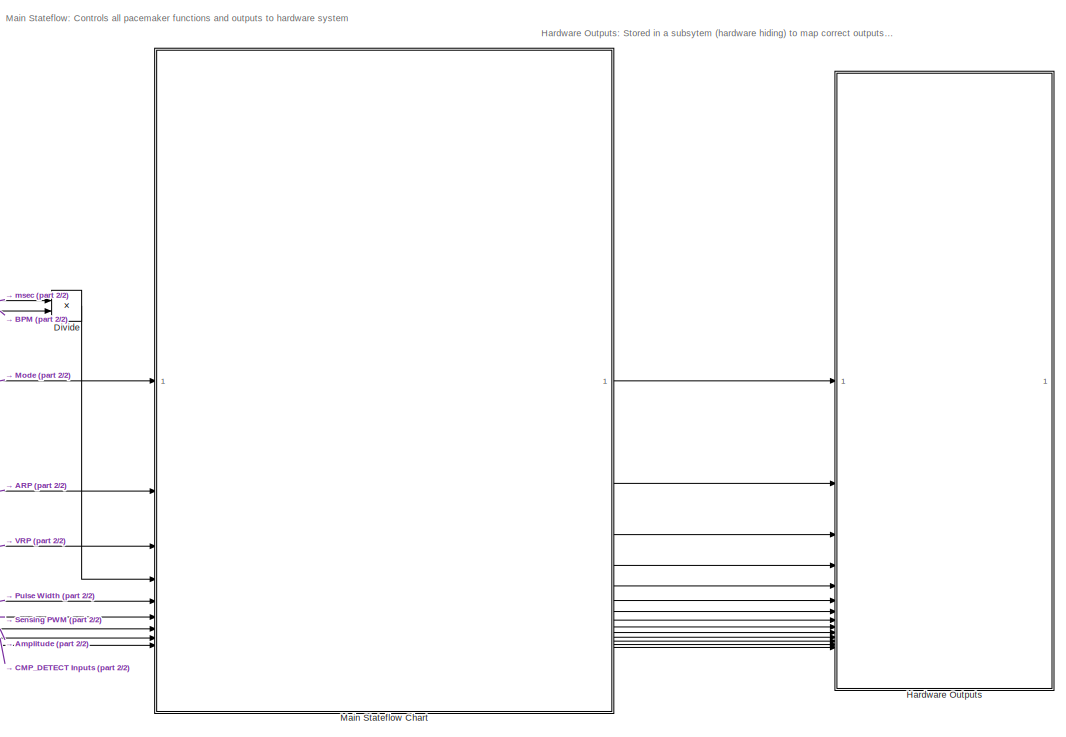
[diagram: root canvas - part 1/2, right side, full height]
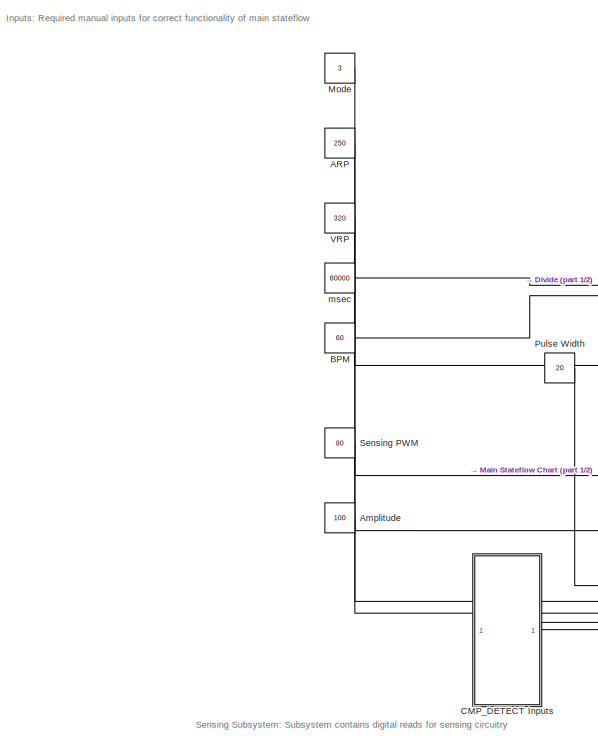
[diagram: root canvas - part 2/2, left side, full height]
MODEL slx_8c29b159b8b4
KIND model
CONFIG AbsTol = auto
CONFIG EnableMultiTasking = on
CONFIG FixedStep = 1e-3
CONFIG MaxStep = auto
CONFIG MinStep = auto
CONFIG RelTol = 1e-3
CONFIG SampleTimeConstraint = Unconstrained
CONFIG SolverName = FixedStepAuto
CONFIG StartTime = 0.0
CONFIG StopTime = 10.0
BLOCK [Constant] ARP
  Value = 250
BLOCK [Constant] Amplitude
  Value = 100
BLOCK [Constant] BPM
  Value = 60
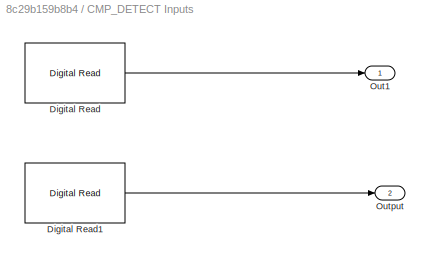
BLOCK [SubSystem] CMP_DETECT Inputs
BLOCK [Reference] CMP_DETECT Inputs/Digital Read  REF=frdmk64flib/Digital Read
  SourceBlock = frdmk64flib/Digital Read
  SourceType = freedomk64f.DigitalRead
BLOCK [Reference] CMP_DETECT Inputs/Digital Read1  REF=frdmk64flib/Digital Read
  SourceBlock = frdmk64flib/Digital Read
  SourceType = freedomk64f.DigitalRead
BLOCK [Outport] CMP_DETECT Inputs/Out1
BLOCK [Outport] CMP_DETECT Inputs/Output
  Port = 2
BLOCK [Product] Divide
  Inputs = */
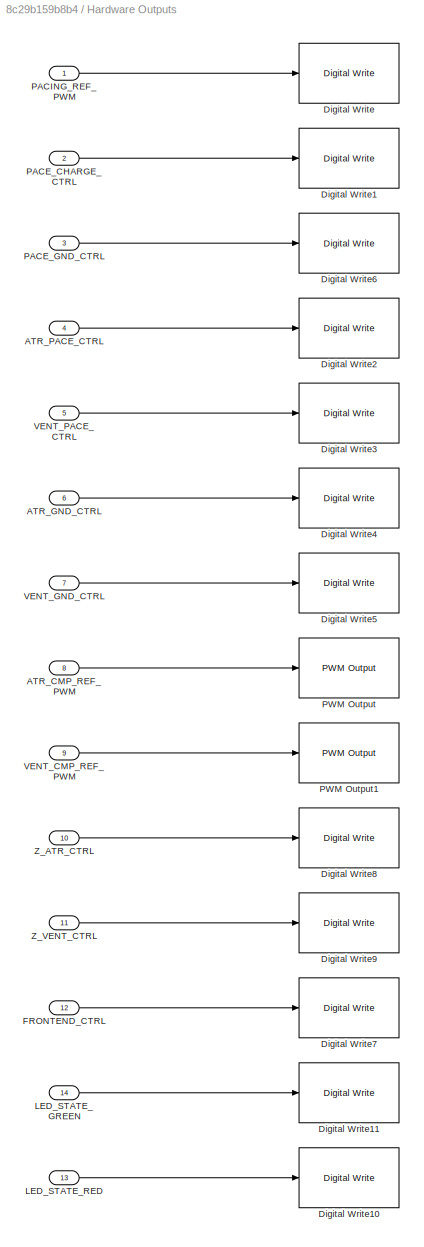
BLOCK [SubSystem] Hardware Outputs
BLOCK [Inport] Hardware Outputs/ATR_CMP_REF_PWM
  Port = 8
BLOCK [Inport] Hardware Outputs/ATR_GND_CTRL
  Port = 6
BLOCK [Inport] Hardware Outputs/ATR_PACE_CTRL
  Port = 4
BLOCK [Reference] Hardware Outputs/Digital Write  REF=frdmk64flib/Digital Write
  SourceBlock = frdmk64flib/Digital Write
  SourceType = freedomk64f.DigitalWrite
BLOCK [Reference] Hardware Outputs/Digital Write1  REF=frdmk64flib/Digital Write
  SourceBlock = frdmk64flib/Digital Write
  SourceType = freedomk64f.DigitalWrite
BLOCK [Reference] Hardware Outputs/Digital Write10  REF=frdmk64flib/Digital Write
  SourceBlock = frdmk64flib/Digital Write
  SourceType = freedomk64f.DigitalWrite
BLOCK [Reference] Hardware Outputs/Digital Write11  REF=frdmk64flib/Digital Write
  SourceBlock = frdmk64flib/Digital Write
  SourceType = freedomk64f.DigitalWrite
BLOCK [Reference] Hardware Outputs/Digital Write2  REF=frdmk64flib/Digital Write
  SourceBlock = frdmk64flib/Digital Write
  SourceType = freedomk64f.DigitalWrite
BLOCK [Reference] Hardware Outputs/Digital Write3  REF=frdmk64flib/Digital Write
  SourceBlock = frdmk64flib/Digital Write
  SourceType = freedomk64f.DigitalWrite
BLOCK [Reference] Hardware Outputs/Digital Write4  REF=frdmk64flib/Digital Write
  SourceBlock = frdmk64flib/Digital Write
  SourceType = freedomk64f.DigitalWrite
BLOCK [Reference] Hardware Outputs/Digital Write5  REF=frdmk64flib/Digital Write
  SourceBlock = frdmk64flib/Digital Write
  SourceType = freedomk64f.DigitalWrite
BLOCK [Reference] Hardware Outputs/Digital Write6  REF=frdmk64flib/Digital Write
  SourceBlock = frdmk64flib/Digital Write
  SourceType = freedomk64f.DigitalWrite
BLOCK [Reference] Hardware Outputs/Digital Write7  REF=frdmk64flib/Digital Write
  SourceBlock = frdmk64flib/Digital Write
  SourceType = freedomk64f.DigitalWrite
BLOCK [Reference] Hardware Outputs/Digital Write8  REF=frdmk64flib/Digital Write
  SourceBlock = frdmk64flib/Digital Write
  SourceType = freedomk64f.DigitalWrite
BLOCK [Reference] Hardware Outputs/Digital Write9  REF=frdmk64flib/Digital Write
  SourceBlock = frdmk64flib/Digital Write
  SourceType = freedomk64f.DigitalWrite
BLOCK [Inport] Hardware Outputs/FRONTEND_CTRL
  Port = 12
BLOCK [Inport] Hardware Outputs/LED_STATE_GREEN
  Port = 14
BLOCK [Inport] Hardware Outputs/LED_STATE_RED
  Port = 13
BLOCK [Inport] Hardware Outputs/PACE_CHARGE_CTRL
  Port = 2
BLOCK [Inport] Hardware Outputs/PACE_GND_CTRL
  Port = 3
BLOCK [Inport] Hardware Outputs/PACING_REF_PWM
BLOCK [Reference] Hardware Outputs/PWM Output  REF=frdmk64flib/PWM Output
  SourceBlock = frdmk64flib/PWM Output
  SourceType = freedomk64f.PWMOutput
BLOCK [Reference] Hardware Outputs/PWM Output1  REF=frdmk64flib/PWM Output
  SourceBlock = frdmk64flib/PWM Output
  SourceType = freedomk64f.PWMOutput
BLOCK [Inport] Hardware Outputs/VENT_CMP_REF_PWM
  Port = 9
BLOCK [Inport] Hardware Outputs/VENT_GND_CTRL
  Port = 7
BLOCK [Inport] Hardware Outputs/VENT_PACE_CTRL
  Port = 5
BLOCK [Inport] Hardware Outputs/Z_ATR_CTRL
  Port = 10
BLOCK [Inport] Hardware Outputs/Z_VENT_CTRL
  Port = 11
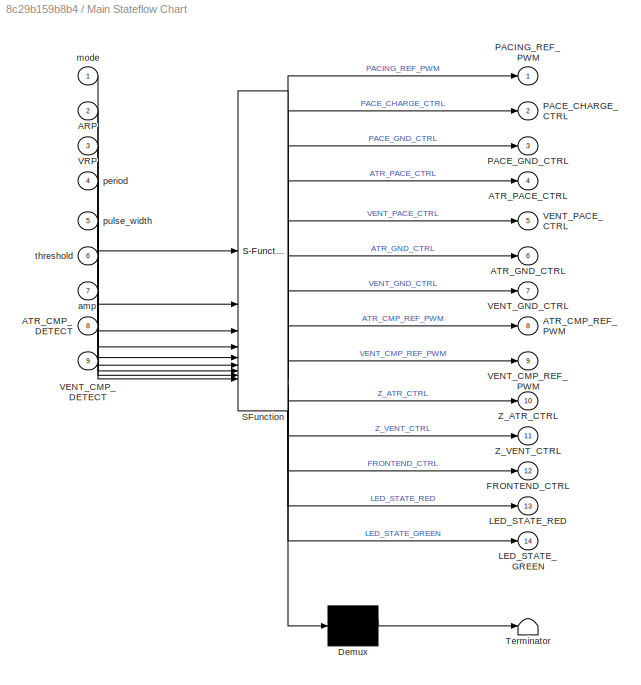
BLOCK [SubSystem] Main Stateflow Chart
  ErrorFcn = Stateflow.Translate.translate
  PermitHierarchicalResolution = ExplicitOnly
  SFBlockType = Chart
  TreatAsAtomicUnit = on
BLOCK [Demux] Main Stateflow Chart/ Demux 
  Outputs = 1
BLOCK [S-Function] Main Stateflow Chart/ SFunction 
  EnableBusSupport = on
  FunctionName = sf_sfun
  PortCounts = [9 15]
  SFcnIsStateOwnerBlock = off
  SFunctionDeploymentMode = off
  Tag = Stateflow S-Function 3
BLOCK [Terminator] Main Stateflow Chart/ Terminator 
BLOCK [Inport] Main Stateflow Chart/ARP
  Port = 2
BLOCK [Inport] Main Stateflow Chart/ATR_CMP_DETECT
  Port = 8
BLOCK [Outport] Main Stateflow Chart/ATR_CMP_REF_PWM
  Port = 8
BLOCK [Outport] Main Stateflow Chart/ATR_GND_CTRL
  Port = 6
BLOCK [Outport] Main Stateflow Chart/ATR_PACE_CTRL
  Port = 4
BLOCK [Outport] Main Stateflow Chart/FRONTEND_CTRL
  Port = 12
BLOCK [Outport] Main Stateflow Chart/LED_STATE_GREEN
  Port = 14
BLOCK [Outport] Main Stateflow Chart/LED_STATE_RED
  Port = 13
BLOCK [Outport] Main Stateflow Chart/PACE_CHARGE_CTRL
  Port = 2
BLOCK [Outport] Main Stateflow Chart/PACE_GND_CTRL
  Port = 3
BLOCK [Outport] Main Stateflow Chart/PACING_REF_PWM
BLOCK [Inport] Main Stateflow Chart/VENT_CMP_DETECT
  Port = 9
BLOCK [Outport] Main Stateflow Chart/VENT_CMP_REF_PWM
  Port = 9
BLOCK [Outport] Main Stateflow Chart/VENT_GND_CTRL
  Port = 7
BLOCK [Outport] Main Stateflow Chart/VENT_PACE_CTRL
  Port = 5
BLOCK [Inport] Main Stateflow Chart/VRP
  Port = 3
BLOCK [Outport] Main Stateflow Chart/Z_ATR_CTRL
  Port = 10
BLOCK [Outport] Main Stateflow Chart/Z_VENT_CTRL
  Port = 11
BLOCK [Inport] Main Stateflow Chart/amp
  Port = 7
BLOCK [Inport] Main Stateflow Chart/mode
BLOCK [Inport] Main Stateflow Chart/period
  Port = 4
BLOCK [Inport] Main Stateflow Chart/pulse_width
  Port = 5
BLOCK [Inport] Main Stateflow Chart/threshold
  Port = 6
BLOCK [Constant] Mode
  Value = 3
BLOCK [Constant] Pulse Width
  Value = 20
BLOCK [Constant] Sensing PWM 
  Value = 80
BLOCK [Constant] VRP
  Value = 320
BLOCK [Constant] msec
  Value = 60000
ANNOTATION (root): Inputs: Required manual inputs for correct functionality of main stateflow
ANNOTATION (root): Sensing Subsystem: Subsystem contains digital reads for sensing circuitry
ANNOTATION (root): Hardware Outputs: Stored in a subsytem (hardware hiding) to map correct outputs to associated hardware pins.
ANNOTATION (root): Main Stateflow: Controls all pacemaker functions and outputs to hardware system
LINE ARP:1 -> Main Stateflow Chart:2
LINE Amplitude:1 -> Main Stateflow Chart:7
LINE BPM:1 -> Divide:2
LINE CMP_DETECT Inputs/Digital Read1:1 -> CMP_DETECT Inputs/Output:1
LINE CMP_DETECT Inputs/Digital Read:1 -> CMP_DETECT Inputs/Out1:1
LINE CMP_DETECT Inputs:1 -> Main Stateflow Chart:8
LINE CMP_DETECT Inputs:2 -> Main Stateflow Chart:9
LINE Divide:1 -> Main Stateflow Chart:4
LINE Hardware Outputs/ATR_CMP_REF_PWM:1 -> Hardware Outputs/PWM Output:1
LINE Hardware Outputs/ATR_GND_CTRL:1 -> Hardware Outputs/Digital Write4:1
LINE Hardware Outputs/ATR_PACE_CTRL:1 -> Hardware Outputs/Digital Write2:1
LINE Hardware Outputs/FRONTEND_CTRL:1 -> Hardware Outputs/Digital Write7:1
LINE Hardware Outputs/LED_STATE_GREEN:1 -> Hardware Outputs/Digital Write11:1
LINE Hardware Outputs/LED_STATE_RED:1 -> Hardware Outputs/Digital Write10:1
LINE Hardware Outputs/PACE_CHARGE_CTRL:1 -> Hardware Outputs/Digital Write1:1
LINE Hardware Outputs/PACE_GND_CTRL:1 -> Hardware Outputs/Digital Write6:1
LINE Hardware Outputs/PACING_REF_PWM:1 -> Hardware Outputs/Digital Write:1
LINE Hardware Outputs/VENT_CMP_REF_PWM:1 -> Hardware Outputs/PWM Output1:1
LINE Hardware Outputs/VENT_GND_CTRL:1 -> Hardware Outputs/Digital Write5:1
LINE Hardware Outputs/VENT_PACE_CTRL:1 -> Hardware Outputs/Digital Write3:1
LINE Hardware Outputs/Z_ATR_CTRL:1 -> Hardware Outputs/Digital Write8:1
LINE Hardware Outputs/Z_VENT_CTRL:1 -> Hardware Outputs/Digital Write9:1
LINE Main Stateflow Chart:1 -> Hardware Outputs:1
LINE Main Stateflow Chart:10 -> Hardware Outputs:10
LINE Main Stateflow Chart:11 -> Hardware Outputs:11
LINE Main Stateflow Chart:12 -> Hardware Outputs:12
LINE Main Stateflow Chart:13 -> Hardware Outputs:13
LINE Main Stateflow Chart:14 -> Hardware Outputs:14
LINE Main Stateflow Chart:2 -> Hardware Outputs:2
LINE Main Stateflow Chart:3 -> Hardware Outputs:3
LINE Main Stateflow Chart:4 -> Hardware Outputs:4
LINE Main Stateflow Chart:5 -> Hardware Outputs:5
LINE Main Stateflow Chart:6 -> Hardware Outputs:6
LINE Main Stateflow Chart:7 -> Hardware Outputs:7
LINE Main Stateflow Chart:8 -> Hardware Outputs:8
LINE Main Stateflow Chart:9 -> Hardware Outputs:9
LINE Mode:1 -> Main Stateflow Chart:1
LINE Pulse Width:1 -> Main Stateflow Chart:5
LINE Sensing PWM :1 -> Main Stateflow Chart:6
LINE VRP:1 -> Main Stateflow Chart:3
LINE msec:1 -> Divide:1
CHART Main Stateflow Chart states=29 transitions=26
  STATE_LABEL 'AOO'
  STATE_LABEL '<!DOCTYPE HTML PUBLIC "-//W3C//DTD HTML 4.0//EN" "http://www.w3.org/TR/REC-html40/strict.dtd">\n<html><head><meta name="qrichtext" content="1" /><style type="text/css">\np, li { white-space: pre-wrap; }\n</style></head><body align="left" style=" font-family:\'Helvetica\'; font-size:12px; font-weight:400; font-style:normal;">\n<p align="left" style=" margin-top:0px; margin-bottom:0px; margin-left:0px; ma...<+503ch>'  <repeated x4 — deduplicated; at blocks: Main Stateflow Chart>
  STATE_LABEL '<!DOCTYPE HTML PUBLIC "-//W3C//DTD HTML 4.0//EN" "http://www.w3.org/TR/REC-html40/strict.dtd">\n<html><head><meta name="qrichtext" content="1" /><style type="text/css">\np, li { white-space: pre-wrap; }\n</style></head><body align="left" style=" font-family:\'MS Shell Dlg 2\'; font-size:11px; font-weight:600; font-style:normal;">\n<p align="left" style=" margin-top:0px; margin-bottom:0px; margin-left:0p...<+428ch>'  <repeated x6 — deduplicated; at blocks: Main Stateflow Chart>
  STATE_LABEL 'Pacing\n\nentry:\nPACE_CHARGE_CTRL=0;\nATR_PACE_CTRL= 1;\nATR_GND_CTRL= 0;\nPACE_GND_CTRL=1;\nLED_STATE_RED=false;\nLED_STATE_GREEN=true;\n'
  STATE_LABEL 'Charging\n\nentry:\nPACE_CHARGE_CTRL=1;\nATR_PACE_CTRL= 0;\nATR_GND_CTRL= 1;\nPACE_GND_CTRL=0;\nLED_STATE_RED=true;\nLED_STATE_GREEN=false;'
  STATE_LABEL '[after(period-pulse_width,msec)]'
  STATE_LABEL '[after(pulse_width,msec)]'
  STATE_LABEL 'Pacing\n\nentry:\nPACE_CHARGE_CTRL=0;\nATR_PACE_CTRL= 1;\nATR_GND_CTRL= 0;\nPACE_GND_CTRL=1;\nLED_STATE_RED=false;\nLED_STATE_GREEN=true;\n'
  STATE_LABEL 'Charging\n\nentry:\nPACE_CHARGE_CTRL=1;\nATR_PACE_CTRL= 0;\nATR_GND_CTRL= 1;\nPACE_GND_CTRL=0;\nLED_STATE_RED=true;\nLED_STATE_GREEN=false;'
  STATE_LABEL '<!DOCTYPE HTML PUBLIC "-//W3C//DTD HTML 4.0//EN" "http://www.w3.org/TR/REC-html40/strict.dtd">\n<html><head><meta name="qrichtext" content="1" /><style type="text/css">\np, li { white-space: pre-wrap; }\n</style></head><body align="left" style=" font-family:\'Helvetica\'; font-size:12px; font-weight:400; font-style:normal;">\n<p align="left" style=" margin-top:0px; margin-bottom:0px; margin-left:0px; ma...<+219ch>'
  STATE_LABEL 'VOO'
  STATE_LABEL 'Pacing\n\nentry:\nPACE_CHARGE_CTRL=0;\nVENT_PACE_CTRL= 1;\nVENT_GND_CTRL= 0;\nPACE_GND_CTRL=1;\nLED_STATE_RED=false;\nLED_STATE_GREEN=true;\n'
  STATE_LABEL 'Charging\nentry:\nPACE_CHARGE_CTRL = 1;\nVENT_PACE_CTRL = 0;\nVENT_GND_CTRL = 1;\nPACE_GND_CTRL = 0;\nLED_STATE_RED=true;\nLED_STATE_GREEN=false;'
  STATE_LABEL '[after(period-pulse_width,msec)]'
  STATE_LABEL '[after(pulse_width,msec)]'
  STATE_LABEL 'Pacing\n\nentry:\nPACE_CHARGE_CTRL=0;\nVENT_PACE_CTRL= 1;\nVENT_GND_CTRL= 0;\nPACE_GND_CTRL=1;\nLED_STATE_RED=false;\nLED_STATE_GREEN=true;\n'
  STATE_LABEL 'Charging\nentry:\nPACE_CHARGE_CTRL = 1;\nVENT_PACE_CTRL = 0;\nVENT_GND_CTRL = 1;\nPACE_GND_CTRL = 0;\nLED_STATE_RED=true;\nLED_STATE_GREEN=false;'
  STATE_LABEL '<!DOCTYPE HTML PUBLIC "-//W3C//DTD HTML 4.0//EN" "http://www.w3.org/TR/REC-html40/strict.dtd">\n<html><head><meta name="qrichtext" content="1" /><style type="text/css">\np, li { white-space: pre-wrap; }\n</style></head><body align="left" style=" font-family:\'Helvetica\'; font-size:12px; font-weight:400; font-style:normal;">\n<p align="left" style=" margin-top:0px; margin-bottom:0px; margin-left:0px; ma...<+222ch>'
  STATE_LABEL '<!DOCTYPE HTML PUBLIC "-//W3C//DTD HTML 4.0//EN" "http://www.w3.org/TR/REC-html40/strict.dtd">\n<html><head><meta name="qrichtext" content="1" /><style type="text/css">\np, li { white-space: pre-wrap; }\n</style></head><body align="left" style=" font-family:\'Helvetica\'; font-size:12px; font-weight:400; font-style:normal;">\n<p align="left" style=" margin-top:0px; margin-bottom:0px; margin-left:0px; ma...<+596ch>'
  STATE_LABEL 'Init\nPACING_REF_PWM = amp;\nATR_CMP_REF_PWM = threshold;\nVENT_CMP_REF_PWM = threshold;\nZ_VENT_CTRL = 0;\nZ_ATR_CTRL = 0;\nFRONTEND_CTRL = 0;\nLED_STATE_RED = false;\nLED_STATE_GREEN = false;'
  STATE_LABEL 'AAI'
  STATE_LABEL '<!DOCTYPE HTML PUBLIC "-//W3C//DTD HTML 4.0//EN" "http://www.w3.org/TR/REC-html40/strict.dtd">\n<html><head><meta name="qrichtext" content="1" /><style type="text/css">\np, li { white-space: pre-wrap; }\n</style></head><body align="left" style=" font-family:\'Helvetica\'; font-size:12px; font-weight:400; font-style:normal;">\n<p align="left" style=" margin-top:0px; margin-bottom:0px; margin-left:0px; ma...<+235ch>'
  STATE_LABEL 'Pacing\n\nentry:\nPACE_CHARGE_CTRL = 0;\nATR_PACE_CTRL = 1;\nATR_GND_CTRL =0;\nPACE_GND_CTRL = 1;\nLED_STATE_RED = false;\nLED_STATE_GREEN = true;\n'
  STATE_LABEL 'Charging_Sensing\n\n%CHARGING\nentry:\nPACE_CHARGE_CTRL = 1;\nATR_PACE_CTRL = 0;\nATR_GND_CTRL =1;\nPACE_GND_CTRL = 0;\n%SENSING\nFRONTEND_CTRL = 1;\nLED_STATE_RED = true;\nLED_STATE_GREEN = false;'
  STATE_LABEL '<!DOCTYPE HTML PUBLIC "-//W3C//DTD HTML 4.0//EN" "http://www.w3.org/TR/REC-html40/strict.dtd">\n<html><head><meta name="qrichtext" content="1" /><style type="text/css">\np, li { white-space: pre-wrap; }\n</style></head><body align="left" style=" font-family:\'Helvetica\'; font-size:12px; font-weight:400; font-style:normal;">\n<p align="left" style=" margin-top:0px; margin-bottom:0px; margin-left:0px; ma...<+556ch>'
  STATE_LABEL '[ATR_CMP_DETECT == 1]'
  STATE_LABEL '[after(ARP-pulse_width,msec)]'
  STATE_LABEL 'after(period-pulse_width,msec)[ATR_CMP_DETECT == 0]'
  STATE_LABEL '[after(pulse_width,msec)]'
  STATE_LABEL '<!DOCTYPE HTML PUBLIC "-//W3C//DTD HTML 4.0//EN" "http://www.w3.org/TR/REC-html40/strict.dtd">\n<html><head><meta name="qrichtext" content="1" /><style type="text/css">\np, li { white-space: pre-wrap; }\n</style></head><body align="left" style=" font-family:\'Helvetica\'; font-size:12px; font-weight:400; font-style:normal;">\n<p align="left" style=" margin-top:0px; margin-bottom:0px; margin-left:0px; ma...<+235ch>'
  STATE_LABEL 'Pacing\n\nentry:\nPACE_CHARGE_CTRL = 0;\nATR_PACE_CTRL = 1;\nATR_GND_CTRL =0;\nPACE_GND_CTRL = 1;\nLED_STATE_RED = false;\nLED_STATE_GREEN = true;\n'
  STATE_LABEL 'Charging_Sensing\n\n%CHARGING\nentry:\nPACE_CHARGE_CTRL = 1;\nATR_PACE_CTRL = 0;\nATR_GND_CTRL =1;\nPACE_GND_CTRL = 0;\n%SENSING\nFRONTEND_CTRL = 1;\nLED_STATE_RED = true;\nLED_STATE_GREEN = false;'
CHART  states=0 transitions=0
